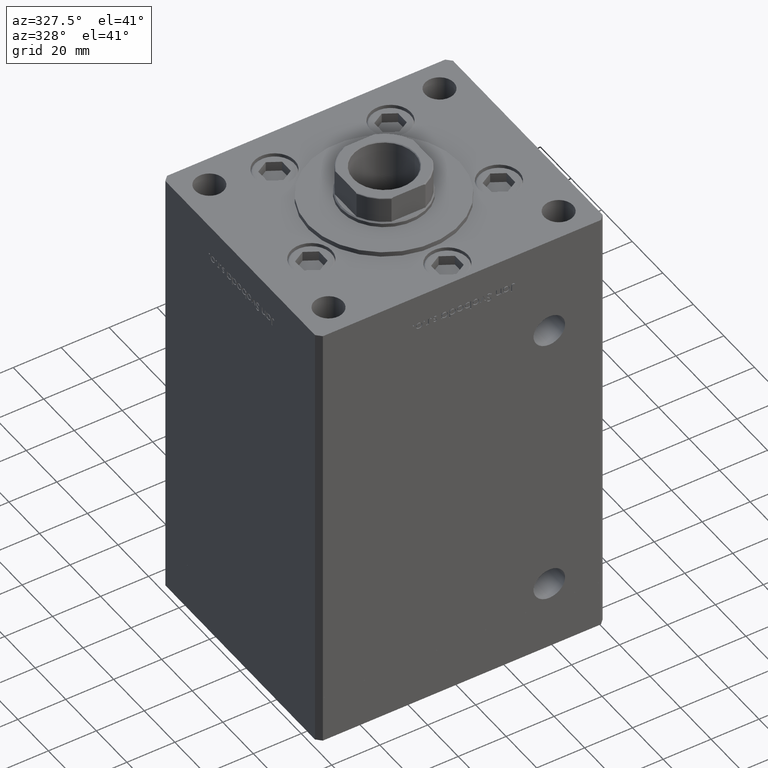
[diagram: clean part render]
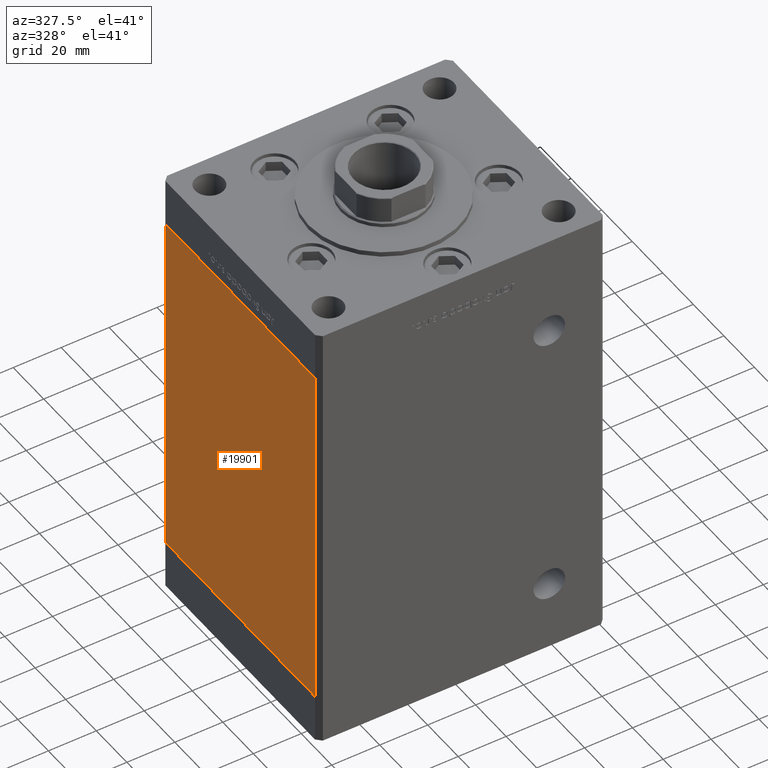
[diagram: same view with one face highlighted and labeled with its STEP entity id]
A machine part, auxiliary view. The second image highlights one B-rep face of the part: STEP entity #19901.
In plain terms, the highlighted planar face has unit normal (1, 0, 0).
Its self-contained STEP definition (entity closure, byte-faithful):
#57 = CARTESIAN_POINT ( 'NONE',  ( -60.00000000000001421, 49.00000000000000000, 0.000000000000000000 ) ) ;
#2610 = LINE ( 'NONE', #51339, #8329 ) ;
#7074 = DIRECTION ( 'NONE',  ( 2.832201593431521726E-16, -1.000000000000000000, 0.000000000000000000 ) ) ;
#7881 = CARTESIAN_POINT ( 'NONE',  ( -60.00000000000001421, 49.00000000000000000, 148.5000000000000000 ) ) ;
#8329 = VECTOR ( 'NONE', #7074, 1000.000000000000000 ) ;
#11578 = PLANE ( 'NONE',  #29444 ) ;
#12054 = VECTOR ( 'NONE', #19530, 1000.000000000000000 ) ;
#12485 = VERTEX_POINT ( 'NONE', #46486 ) ;
#13312 = VECTOR ( 'NONE', #31703, 1000.000000000000000 ) ;
#13765 = ORIENTED_EDGE ( 'NONE', *, *, #35035, .T. ) ;
#13862 = CARTESIAN_POINT ( 'NONE',  ( -60.00000000000001421, 49.00000000000000000, 148.5000000000000000 ) ) ;
#15104 = CARTESIAN_POINT ( 'NONE',  ( -59.99999999999998579, -49.00000000000000000, 148.5000000000000000 ) ) ;
#17308 = CARTESIAN_POINT ( 'NONE',  ( -59.99999999999998579, -49.00000000000000000, 0.000000000000000000 ) ) ;
#17526 = EDGE_CURVE ( 'NONE', #36413, #30000, #2610, .T. ) ;
#17725 = VERTEX_POINT ( 'NONE', #17308 ) ;
#19530 = DIRECTION ( 'NONE',  ( -0.000000000000000000, -0.000000000000000000, -1.000000000000000000 ) ) ;
#19901 = ADVANCED_FACE ( 'NONE', ( #23963 ), #11578, .F. ) ;
#20519 = DIRECTION ( 'NONE',  ( -2.832201593431521726E-16, 1.000000000000000000, 0.000000000000000000 ) ) ;
#23491 = CARTESIAN_POINT ( 'NONE',  ( -60.00000000000001421, 49.00000000000000000, 148.5000000000000000 ) ) ;
#23799 = DIRECTION ( 'NONE',  ( 2.832201593431521726E-16, -1.000000000000000000, 0.000000000000000000 ) ) ;
#23963 = FACE_OUTER_BOUND ( 'NONE', #35437, .T. ) ;
#25833 = ORIENTED_EDGE ( 'NONE', *, *, #52030, .F. ) ;
#29200 = ORIENTED_EDGE ( 'NONE', *, *, #17526, .F. ) ;
#29444 = AXIS2_PLACEMENT_3D ( 'NONE', #7881, #32385, #20519 ) ;
#30000 = VERTEX_POINT ( 'NONE', #30874 ) ;
#30698 = EDGE_CURVE ( 'NONE', #12485, #17725, #48805, .T. ) ;
#30874 = CARTESIAN_POINT ( 'NONE',  ( -59.99999999999998579, -49.00000000000000000, 148.5000000000000000 ) ) ;
#31703 = DIRECTION ( 'NONE',  ( -0.000000000000000000, -0.000000000000000000, -1.000000000000000000 ) ) ;
#32385 = DIRECTION ( 'NONE',  ( 1.000000000000000000, 2.832201593431521726E-16, -0.000000000000000000 ) ) ;
#35035 = EDGE_CURVE ( 'NONE', #36413, #12485, #46178, .T. ) ;
#35437 = EDGE_LOOP ( 'NONE', ( #38304, #25833, #29200, #13765 ) ) ;
#36413 = VERTEX_POINT ( 'NONE', #13862 ) ;
#38304 = ORIENTED_EDGE ( 'NONE', *, *, #30698, .T. ) ;
#38853 = VECTOR ( 'NONE', #23799, 1000.000000000000000 ) ;
#46178 = LINE ( 'NONE', #23491, #12054 ) ;
#46486 = CARTESIAN_POINT ( 'NONE',  ( -60.00000000000001421, 49.00000000000000000, 0.000000000000000000 ) ) ;
#47775 = LINE ( 'NONE', #15104, #13312 ) ;
#48805 = LINE ( 'NONE', #57, #38853 ) ;
#51339 = CARTESIAN_POINT ( 'NONE',  ( -60.00000000000001421, 49.00000000000000000, 148.5000000000000000 ) ) ;
#52030 = EDGE_CURVE ( 'NONE', #30000, #17725, #47775, .T. ) ;